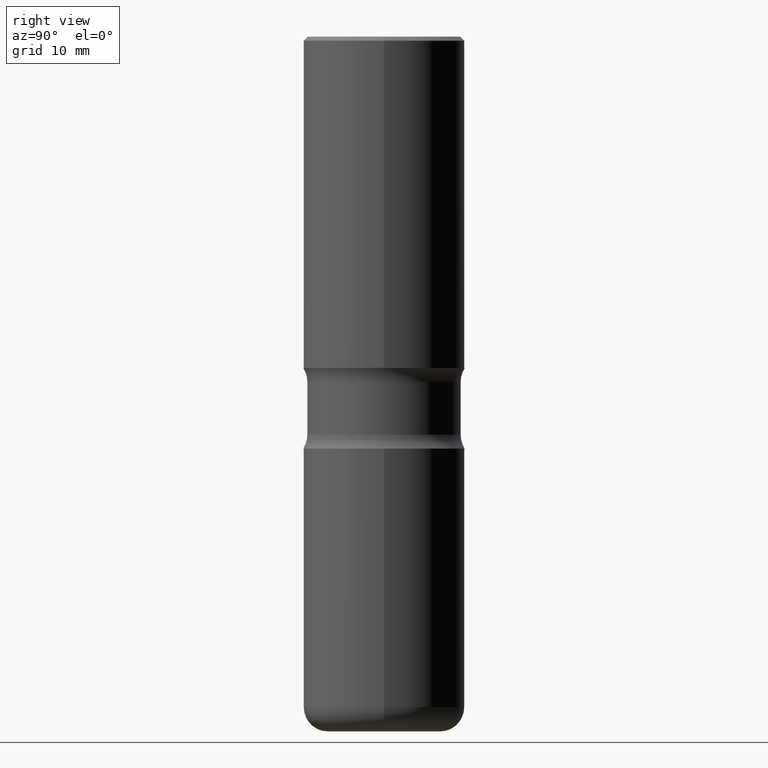
[diagram: clean part render]
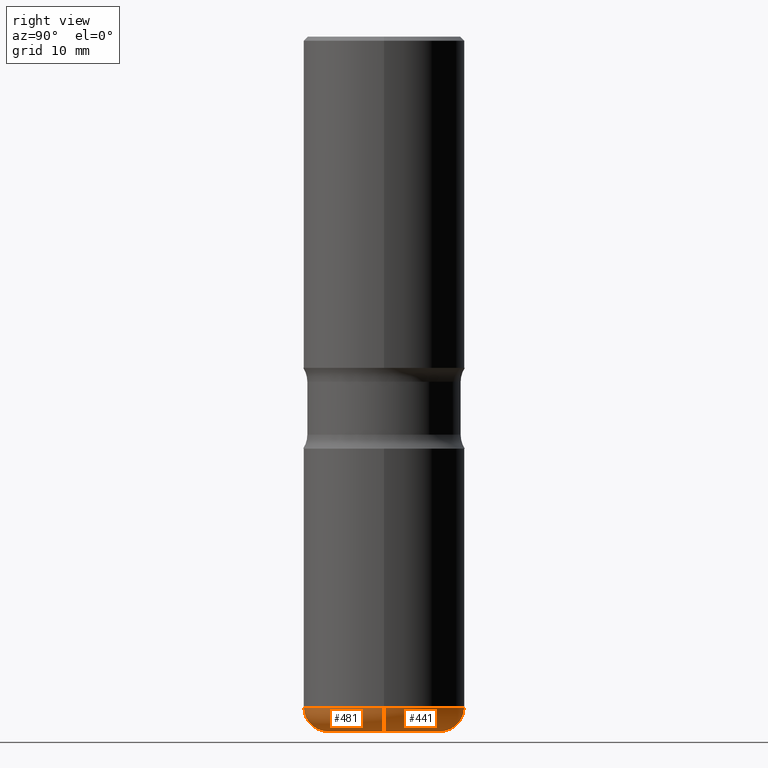
[diagram: same view with one multi-face feature highlighted, each face labeled with its STEP entity id]
A machine part, right view. The highlighted faces form ONE feature: a constant-radius fillet chain: 2 tangent blend faces with common blend radius 2.9997 mm. The faces share edges in the B-rep.
Their STEP definitions:
[1] entity #441 (Torus):
#7 = VERTEX_POINT ( 'NONE', #78 ) ;
#18 = DIRECTION ( 'NONE',  ( -2.445468806185136597E-29, 3.491481338843145583E-15, 1.000000000000000000 ) ) ;
#51 = CARTESIAN_POINT ( 'NONE',  ( 0.3937000000000006605, -1.415830597714283597E-14, -3.267700000000000937 ) ) ;
#62 = ORIENTED_EDGE ( 'NONE', *, *, #309, .F. ) ;
#65 = DIRECTION ( 'NONE',  ( 7.105427357601001859E-15, 1.000000000000000000, -3.491481338843145583E-15 ) ) ;
#78 = CARTESIAN_POINT ( 'NONE',  ( -0.3937000000000006605, -8.611706820250229288E-15, -3.267700000000000937 ) ) ;
#81 = FACE_OUTER_BOUND ( 'NONE', #390, .T. ) ;
#98 = ORIENTED_EDGE ( 'NONE', *, *, #345, .T. ) ;
#102 = VERTEX_POINT ( 'NONE', #521 ) ;
#112 = CIRCLE ( 'NONE', #462, 0.2756000000000001227 ) ;
#131 = AXIS2_PLACEMENT_3D ( 'NONE', #310, #18, #190 ) ;
#163 = CIRCLE ( 'NONE', #205, 0.1180999999999999273 ) ;
#190 = DIRECTION ( 'NONE',  ( 1.000000000000000000, -6.982962677686266711E-15, 0.000000000000000000 ) ) ;
#193 = DIRECTION ( 'NONE',  ( 1.000000000000000000, -6.982962677686262766E-15, 0.000000000000000000 ) ) ;
#199 = DIRECTION ( 'NONE',  ( -2.445468806185136597E-29, 3.491481338843145583E-15, 1.000000000000000000 ) ) ;
#200 = ORIENTED_EDGE ( 'NONE', *, *, #429, .F. ) ;
#201 = CARTESIAN_POINT ( 'NONE',  ( 0.2756000000000007888, -1.333361808490808771E-14, -3.267700000000000049 ) ) ;
#205 = AXIS2_PLACEMENT_3D ( 'NONE', #450, #65, #308 ) ;
#206 = VERTEX_POINT ( 'NONE', #51 ) ;
#232 = CARTESIAN_POINT ( 'NONE',  ( 8.279868283981636714E-29, -1.182145751705512373E-14, -3.385800000000000143 ) ) ;
#237 = TOROIDAL_SURFACE ( 'NONE', #378, 0.2756000000000007888, 0.1180999999999999411 ) ;
#241 = DIRECTION ( 'NONE',  ( 1.000000000000000000, -6.982962677686265922E-15, 4.883557194083112340E-29 ) ) ;
#243 = DIRECTION ( 'NONE',  ( -2.445468806185136597E-29, 3.491481338843145583E-15, 1.000000000000000000 ) ) ;
#269 = EDGE_CURVE ( 'NONE', #102, #489, #112, .T. ) ;
#288 = CARTESIAN_POINT ( 'NONE',  ( -0.2756000000000001227, -9.237454278775256635E-15, -3.385800000000000143 ) ) ;
#308 = DIRECTION ( 'NONE',  ( -1.000000000000000000, 7.105427357601000281E-15, 0.000000000000000000 ) ) ;
#309 = EDGE_CURVE ( 'NONE', #206, #7, #388, .T. ) ;
#310 = CARTESIAN_POINT ( 'NONE',  ( 7.991058417971172834E-29, -1.140911357093774960E-14, -3.267700000000000937 ) ) ;
#321 = DIRECTION ( 'NONE',  ( -6.982962677686266711E-15, -1.000000000000000000, 3.491481338843145583E-15 ) ) ;
#325 = AXIS2_PLACEMENT_3D ( 'NONE', #201, #321, #504 ) ;
#345 = EDGE_CURVE ( 'NONE', #489, #7, #163, .T. ) ;
#378 = AXIS2_PLACEMENT_3D ( 'NONE', #456, #243, #241 ) ;
#388 = CIRCLE ( 'NONE', #131, 0.3937000000000006605 ) ;
#390 = EDGE_LOOP ( 'NONE', ( #465, #98, #62, #200 ) ) ;
#429 = EDGE_CURVE ( 'NONE', #102, #206, #517, .T. ) ;
#441 = ADVANCED_FACE ( 'NONE', ( #81 ), #237, .T. ) ;
#450 = CARTESIAN_POINT ( 'NONE',  ( -0.2756000000000007888, -9.450857791182905118E-15, -3.267700000000000049 ) ) ;
#456 = CARTESIAN_POINT ( 'NONE',  ( 7.991058417971171713E-29, -1.140911357093774644E-14, -3.267700000000000049 ) ) ;
#462 = AXIS2_PLACEMENT_3D ( 'NONE', #232, #199, #193 ) ;
#465 = ORIENTED_EDGE ( 'NONE', *, *, #269, .T. ) ;
#489 = VERTEX_POINT ( 'NONE', #288 ) ;
#504 = DIRECTION ( 'NONE',  ( 1.000000000000000000, -6.982962677686260400E-15, 0.000000000000000000 ) ) ;
#517 = CIRCLE ( 'NONE', #325, 0.1180999999999999273 ) ;
#521 = CARTESIAN_POINT ( 'NONE',  ( 0.2756000000000001227, -1.374596203102545868E-14, -3.385800000000000143 ) ) ;
[2] entity #481 (Torus):
#7 = VERTEX_POINT ( 'NONE', #78 ) ;
#8 = EDGE_CURVE ( 'NONE', #489, #102, #161, .T. ) ;
#38 = CARTESIAN_POINT ( 'NONE',  ( 8.279868283981636714E-29, -1.182145751705512373E-14, -3.385800000000000143 ) ) ;
#51 = CARTESIAN_POINT ( 'NONE',  ( 0.3937000000000006605, -1.415830597714283597E-14, -3.267700000000000937 ) ) ;
#65 = DIRECTION ( 'NONE',  ( 7.105427357601001859E-15, 1.000000000000000000, -3.491481338843145583E-15 ) ) ;
#78 = CARTESIAN_POINT ( 'NONE',  ( -0.3937000000000006605, -8.611706820250229288E-15, -3.267700000000000937 ) ) ;
#102 = VERTEX_POINT ( 'NONE', #521 ) ;
#121 = CARTESIAN_POINT ( 'NONE',  ( 7.991058417971171713E-29, -1.140911357093774644E-14, -3.267700000000000049 ) ) ;
#161 = CIRCLE ( 'NONE', #195, 0.2756000000000001227 ) ;
#163 = CIRCLE ( 'NONE', #205, 0.1180999999999999273 ) ;
#189 = ORIENTED_EDGE ( 'NONE', *, *, #208, .F. ) ;
#195 = AXIS2_PLACEMENT_3D ( 'NONE', #38, #545, #368 ) ;
#201 = CARTESIAN_POINT ( 'NONE',  ( 0.2756000000000007888, -1.333361808490808771E-14, -3.267700000000000049 ) ) ;
#205 = AXIS2_PLACEMENT_3D ( 'NONE', #450, #65, #308 ) ;
#206 = VERTEX_POINT ( 'NONE', #51 ) ;
#208 = EDGE_CURVE ( 'NONE', #7, #206, #414, .T. ) ;
#222 = DIRECTION ( 'NONE',  ( -2.445468806185136597E-29, 3.491481338843145583E-15, 1.000000000000000000 ) ) ;
#266 = AXIS2_PLACEMENT_3D ( 'NONE', #295, #222, #389 ) ;
#273 = TOROIDAL_SURFACE ( 'NONE', #455, 0.2756000000000007888, 0.1180999999999999411 ) ;
#288 = CARTESIAN_POINT ( 'NONE',  ( -0.2756000000000001227, -9.237454278775256635E-15, -3.385800000000000143 ) ) ;
#295 = CARTESIAN_POINT ( 'NONE',  ( 7.991058417971172834E-29, -1.140911357093774960E-14, -3.267700000000000937 ) ) ;
#308 = DIRECTION ( 'NONE',  ( -1.000000000000000000, 7.105427357601000281E-15, 0.000000000000000000 ) ) ;
#321 = DIRECTION ( 'NONE',  ( -6.982962677686266711E-15, -1.000000000000000000, 3.491481338843145583E-15 ) ) ;
#325 = AXIS2_PLACEMENT_3D ( 'NONE', #201, #321, #504 ) ;
#326 = DIRECTION ( 'NONE',  ( -2.445468806185136597E-29, 3.491481338843145583E-15, 1.000000000000000000 ) ) ;
#334 = ORIENTED_EDGE ( 'NONE', *, *, #8, .T. ) ;
#345 = EDGE_CURVE ( 'NONE', #489, #7, #163, .T. ) ;
#360 = EDGE_LOOP ( 'NONE', ( #522, #334, #492, #189 ) ) ;
#368 = DIRECTION ( 'NONE',  ( 1.000000000000000000, -6.982962677686262766E-15, 0.000000000000000000 ) ) ;
#370 = FACE_OUTER_BOUND ( 'NONE', #360, .T. ) ;
#389 = DIRECTION ( 'NONE',  ( 1.000000000000000000, -6.982962677686266711E-15, 0.000000000000000000 ) ) ;
#414 = CIRCLE ( 'NONE', #266, 0.3937000000000006605 ) ;
#429 = EDGE_CURVE ( 'NONE', #102, #206, #517, .T. ) ;
#450 = CARTESIAN_POINT ( 'NONE',  ( -0.2756000000000007888, -9.450857791182905118E-15, -3.267700000000000049 ) ) ;
#455 = AXIS2_PLACEMENT_3D ( 'NONE', #121, #326, #548 ) ;
#481 = ADVANCED_FACE ( 'NONE', ( #370 ), #273, .T. ) ;
#489 = VERTEX_POINT ( 'NONE', #288 ) ;
#492 = ORIENTED_EDGE ( 'NONE', *, *, #429, .T. ) ;
#504 = DIRECTION ( 'NONE',  ( 1.000000000000000000, -6.982962677686260400E-15, 0.000000000000000000 ) ) ;
#517 = CIRCLE ( 'NONE', #325, 0.1180999999999999273 ) ;
#521 = CARTESIAN_POINT ( 'NONE',  ( 0.2756000000000001227, -1.374596203102545868E-14, -3.385800000000000143 ) ) ;
#522 = ORIENTED_EDGE ( 'NONE', *, *, #345, .F. ) ;
#545 = DIRECTION ( 'NONE',  ( -2.445468806185136597E-29, 3.491481338843145583E-15, 1.000000000000000000 ) ) ;
#548 = DIRECTION ( 'NONE',  ( 1.000000000000000000, -6.982962677686265922E-15, 4.883557194083112340E-29 ) ) ;